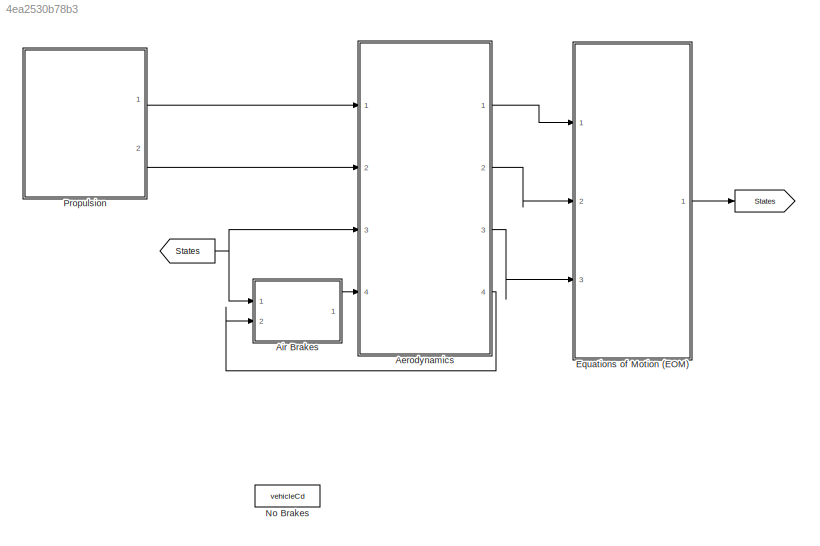
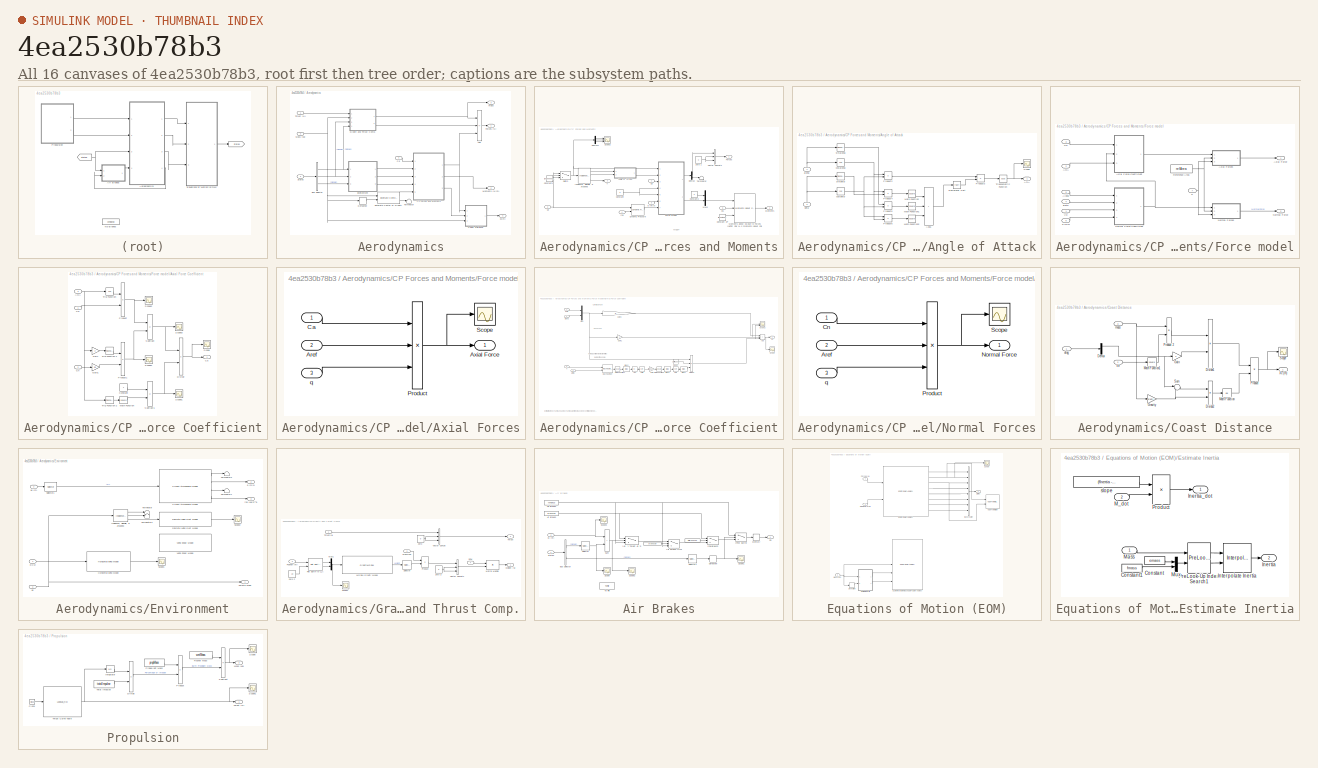
[diagram: thumbnail index - all 16 canvases of the model, root first then tree order]
MODEL slx_4ea2530b78b3
KIND model
CONFIG AbsTol = auto
CONFIG EnableMultiTasking = off
CONFIG FixedStep = auto
CONFIG MaxStep = auto
CONFIG MinStep = auto
CONFIG RelTol = 1e-3
CONFIG SampleTimeConstraint = Unconstrained
CONFIG SolverName = VariableStepAuto
CONFIG StartTime = 0.0
CONFIG StopTime = 30
WORKSPACE source: mxarray member
WORKSPACE bodyLength = 5
WORKSPACE brakesCd = 1
WORKSPACE brakesOn = 1
WORKSPACE dryCG = 3.9
WORKSPACE dryMass = 23
WORKSPACE finArea = 0.2
WORKSPACE finChordAngle = 0.5236
WORKSPACE finSpan = 0.4
WORKSPACE fullBrakesOn = 0
WORKSPACE gravity = 9.8067
WORKSPACE noseLength = 0.5
WORKSPACE propMass = 7.183
WORKSPACE refArea = 0.0182
WORKSPACE rocketCP = 1
WORKSPACE rocketDiam = 0.197
WORKSPACE rocketDiameter = 0.0762
WORKSPACE targetAlt = 3048
WORKSPACE thrust = [0 2638.366 2528.97 3063.078 2426.009 2548.275 2599.755 2554.71 2644.801 2638.366 2561.145 2606.19 ... (27 elements, 27x1)]
WORKSPACE time = [0 0.045 0.067 0.084 0.124 0.186 0.231 0.298 0.371 0.534 0.979 1.142 ... (27 elements, 27x1)]
WORKSPACE totalImpulse = 10831
WORKSPACE vehicleCd = 0.8
WORKSPACE wetCG = 4
WORKSPACE wetMass = 30
BLOCK [Goto]  
  GotoTag = States
BLOCK [From]   
  GotoTag = States
BLOCK [SubSystem] Aerodynamics
  Ports = [4, 4]
  RequestExecContextInheritance = off
BLOCK [Sum] Aerodynamics/Add
  IconShape = rectangular
  Inputs = -+-
  Ports = [3, 1]
BLOCK [BusSelector] Aerodynamics/Bus Selector
  OutputSignals = signal4,signal2,signal5
  Ports = [1, 3]
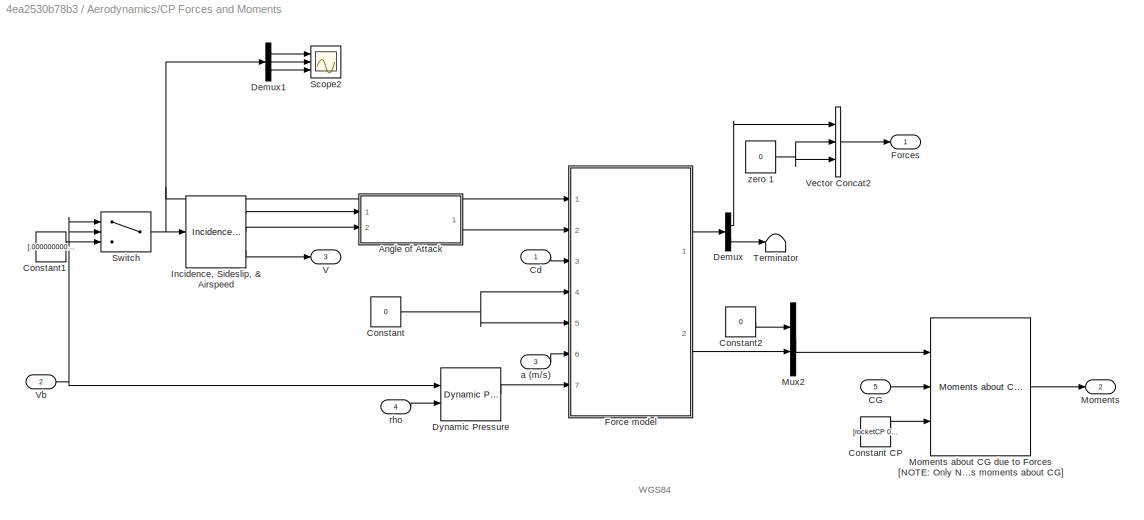
BLOCK [SubSystem] Aerodynamics/CP Forces and Moments
  Ports = [5, 3]
  RequestExecContextInheritance = off
BLOCK [SubSystem] Aerodynamics/CP Forces and Moments/Angle of Attack
  Ports = [2, 1]
  RequestExecContextInheritance = off
BLOCK [Outport] Aerodynamics/CP Forces and Moments/Angle of Attack/AOA
BLOCK [Sum] Aerodynamics/CP Forces and Moments/Angle of Attack/Add1
  IconShape = rectangular
  Inputs = +++
  Ports = [3, 1]
BLOCK [Math] Aerodynamics/CP Forces and Moments/Angle of Attack/Math Function
  Operator = square
  Ports = [1, 1]
  SignedPower = on
BLOCK [Math] Aerodynamics/CP Forces and Moments/Angle of Attack/Math Function1
  Operator = square
  Ports = [1, 1]
  SignedPower = on
BLOCK [Math] Aerodynamics/CP Forces and Moments/Angle of Attack/Math Function2
  Operator = square
  Ports = [1, 1]
  SignedPower = on
BLOCK [Product] Aerodynamics/CP Forces and Moments/Angle of Attack/Product2
  Ports = [2, 1]
BLOCK [Product] Aerodynamics/CP Forces and Moments/Angle of Attack/Product3
  Ports = [2, 1]
BLOCK [Product] Aerodynamics/CP Forces and Moments/Angle of Attack/Product4
  Ports = [2, 1]
BLOCK [Product] Aerodynamics/CP Forces and Moments/Angle of Attack/Product5
  Ports = [2, 1]
BLOCK [Product] Aerodynamics/CP Forces and Moments/Angle of Attack/Product6
  Ports = [2, 1]
BLOCK [Sqrt] Aerodynamics/CP Forces and Moments/Angle of Attack/Reciprocal Sqrt
  Operator = rSqrt
BLOCK [Scope] Aerodynamics/CP Forces and Moments/Angle of Attack/Scope
  Floating = off
  NumInputPorts = 1
  Ports = [1]
  ScopeSpecificationString = Simulink.scopes.TimeScopeBlockCfg('CurrentConfiguration', extmgr.ConfigurationSet(extmgr.Configuration('Core','General UI',true),extmgr.Configuration('Core','Source UI',true),extmgr.Configuration('Sources','WiredSimulink',true,'DataLoggingVariableName','ScopeData23','DataLoggingLimitDataPoints',true,'DataLoggingSaveFormat','Array','DataLoggingDecimation','1','DataLoggingDecimateData',true),extmgr....<+1719ch>
BLOCK [Trigonometry] Aerodynamics/CP Forces and Moments/Angle of Attack/Trigonometric Function
  Operator = acos
  Ports = [1, 1]
BLOCK [Inport] Aerodynamics/CP Forces and Moments/Angle of Attack/alpha
  NameLocation = right
BLOCK [Inport] Aerodynamics/CP Forces and Moments/Angle of Attack/beta
  NameLocation = right
  Port = 2
BLOCK [Trigonometry] Aerodynamics/CP Forces and Moments/Angle of Attack/cos(alpha)
  Operator = cos
  Ports = [1, 1]
BLOCK [Trigonometry] Aerodynamics/CP Forces and Moments/Angle of Attack/cos(beta)
  Operator = cos
  Ports = [1, 1]
BLOCK [Trigonometry] Aerodynamics/CP Forces and Moments/Angle of Attack/sin(alpha)
  Ports = [1, 1]
BLOCK [Trigonometry] Aerodynamics/CP Forces and Moments/Angle of Attack/sin(beta)
  Ports = [1, 1]
BLOCK [Inport] Aerodynamics/CP Forces and Moments/CG
  Port = 5
BLOCK [Inport] Aerodynamics/CP Forces and Moments/Cd
BLOCK [Constant] Aerodynamics/CP Forces and Moments/Constant
  Value = 0
BLOCK [Constant] Aerodynamics/CP Forces and Moments/Constant CP
  Value = [rocketCP 0 0]
BLOCK [Constant] Aerodynamics/CP Forces and Moments/Constant1
  Value = [.00000000001;0;0]
  VectorParams1D = off
BLOCK [Constant] Aerodynamics/CP Forces and Moments/Constant2
  Value = 0
BLOCK [Demux] Aerodynamics/CP Forces and Moments/Demux
  Outputs = 2
  Ports = [1, 2]
BLOCK [Demux] Aerodynamics/CP Forces and Moments/Demux1
  Outputs = 3
  Ports = [1, 3]
BLOCK [Reference] Aerodynamics/CP Forces and Moments/Dynamic Pressure  REF=aerolibasang/Dynamic Pressure
  Ports = [2, 1]
  SourceBlock = aerolibasang/Dynamic Pressure
  SourceProductBaseCode = AE
  SourceType = Dynamic Pressure
BLOCK [SubSystem] Aerodynamics/CP Forces and Moments/Force model
  Ports = [7, 2]
  RequestExecContextInheritance = off
BLOCK [Inport] Aerodynamics/CP Forces and Moments/Force model/AOA
  Port = 2
BLOCK [Inport] Aerodynamics/CP Forces and Moments/Force model/Alpha
  Port = 5
BLOCK [Outport] Aerodynamics/CP Forces and Moments/Force model/Axial Force
BLOCK [SubSystem] Aerodynamics/CP Forces and Moments/Force model/Axial Force Coefficient
  Ports = [3, 1]
  RequestExecContextInheritance = off
BLOCK [Inport] Aerodynamics/CP Forces and Moments/Force model/Axial Force Coefficient/AOA
  Port = 3
BLOCK [Outport] Aerodynamics/CP Forces and Moments/Force model/Axial Force Coefficient/Ca
BLOCK [Inport] Aerodynamics/CP Forces and Moments/Force model/Axial Force Coefficient/Cd
BLOCK [Inport] Aerodynamics/CP Forces and Moments/Force model/Axial Force Coefficient/Cn
  Port = 2
BLOCK [Constant] Aerodynamics/CP Forces and Moments/Force model/Axial Force Coefficient/Constant
BLOCK [Product] Aerodynamics/CP Forces and Moments/Force model/Axial Force Coefficient/Divide
  Inputs = */
  Ports = [2, 1]
BLOCK [Gain] Aerodynamics/CP Forces and Moments/Force model/Axial Force Coefficient/Gain
  Gain = 2
BLOCK [Gain] Aerodynamics/CP Forces and Moments/Force model/Axial Force Coefficient/Gain1
  Gain = 0.5
BLOCK [Math] Aerodynamics/CP Forces and Moments/Force model/Axial Force Coefficient/Math Function
  Operator = square
  Ports = [1, 1]
  SignedPower = on
BLOCK [Product] Aerodynamics/CP Forces and Moments/Force model/Axial Force Coefficient/Product
  Ports = [2, 1]
BLOCK [Product] Aerodynamics/CP Forces and Moments/Force model/Axial Force Coefficient/Product1
  Ports = [2, 1]
BLOCK [Scope] Aerodynamics/CP Forces and Moments/Force model/Axial Force Coefficient/Scope
  Floating = off
  NumInputPorts = 1
  Ports = [1]
  ScopeSpecificationString = Simulink.scopes.TimeScopeBlockCfg('CurrentConfiguration', extmgr.ConfigurationSet(extmgr.Configuration('Core','General UI',true),extmgr.Configuration('Core','Source UI',true),extmgr.Configuration('Sources','WiredSimulink',true,'DataLoggingVariableName','ScopeData5','DataLoggingLimitDataPoints',true,'DataLoggingSaveFormat','Array','DataLoggingDecimation','1','DataLoggingDecimateData',true),extmgr.C...<+1772ch>
BLOCK [Scope] Aerodynamics/CP Forces and Moments/Force model/Axial Force Coefficient/Scope1
  Floating = off
  NumInputPorts = 1
  Ports = [1]
  ScopeSpecificationString = C++SS(StrPVP('Location','[188, 365, 512, 604]'),StrPVP('Open','off'),MxPVP('AxesTitles',54,'struct(''axes1'',''%<SignalLabel>'')'),MxPVP('ScopeGraphics',57,'struct(''FigureColor'',''[0.5 0.5 0.5]'',''AxesColor'',''[0 0 0]'',''AxesTickColor'',''[1 1 1]'',''LineColors'',''[1 1 0;1 0 1;0 1 1;1 0 0;0 1 0;0 0 1]'',''LineStyles'',''-|-|-|-|-|-'',''LineWidths'',''[0.5 0.5 0.5 0.5 0.5 0.5]'',''MarkerStyle...<+197ch>  <repeated x3 — deduplicated; at blocks: Scope1, Scope3, Scope4>
BLOCK [Scope] Aerodynamics/CP Forces and Moments/Force model/Axial Force Coefficient/Scope2
  Floating = off
  NumInputPorts = 1
  Ports = [1]
  ScopeSpecificationString = Simulink.scopes.TimeScopeBlockCfg('CurrentConfiguration', extmgr.ConfigurationSet(extmgr.Configuration('Core','General UI',true),extmgr.Configuration('Core','Source UI',true),extmgr.Configuration('Sources','WiredSimulink',true,'DataLoggingVariableName','ScopeData15','DataLoggingLimitDataPoints',true,'DataLoggingSaveFormat','Array','DataLoggingDecimation','1','DataLoggingDecimateData',true),extmgr....<+1669ch>
BLOCK [Scope] Aerodynamics/CP Forces and Moments/Force model/Axial Force Coefficient/Scope3
  Floating = off
  NumInputPorts = 1
  Ports = [1]
BLOCK [Scope] Aerodynamics/CP Forces and Moments/Force model/Axial Force Coefficient/Scope4
  Floating = off
  NumInputPorts = 1
  Ports = [1]
BLOCK [Sum] Aerodynamics/CP Forces and Moments/Force model/Axial Force Coefficient/Subtract
  IconShape = rectangular
  Inputs = +-
  Ports = [2, 1]
BLOCK [Sum] Aerodynamics/CP Forces and Moments/Force model/Axial Force Coefficient/Subtract1
  IconShape = rectangular
  Inputs = +-
  Ports = [2, 1]
BLOCK [Trigonometry] Aerodynamics/CP Forces and Moments/Force model/Axial Force Coefficient/Trig Function
  Operator = cos
  Ports = [1, 1]
BLOCK [Trigonometry] Aerodynamics/CP Forces and Moments/Force model/Axial Force Coefficient/Trig Function 1
  Ports = [1, 1]
BLOCK [Trigonometry] Aerodynamics/CP Forces and Moments/Force model/Axial Force Coefficient/Trig Function 2
  Ports = [1, 1]
BLOCK [SubSystem] Aerodynamics/CP Forces and Moments/Force model/Axial Forces
  Ports = [3, 1]
  RequestExecContextInheritance = off
BLOCK [Inport] Aerodynamics/CP Forces and Moments/Force model/Axial Forces/Aref
  Port = 2
BLOCK [Outport] Aerodynamics/CP Forces and Moments/Force model/Axial Forces/Axial Force
BLOCK [Inport] Aerodynamics/CP Forces and Moments/Force model/Axial Forces/Ca
BLOCK [Product] Aerodynamics/CP Forces and Moments/Force model/Axial Forces/Product
  Inputs = 3
  Ports = [3, 1]
BLOCK [Scope] Aerodynamics/CP Forces and Moments/Force model/Axial Forces/Scope
  Floating = off
  NumInputPorts = 1
  Ports = [1]
  ScopeSpecificationString = Simulink.scopes.TimeScopeBlockCfg('CurrentConfiguration', extmgr.ConfigurationSet(extmgr.Configuration('Core','General UI',true),extmgr.Configuration('Core','Source UI',true),extmgr.Configuration('Sources','WiredSimulink',true,'DataLoggingVariableName','ScopeData6','DataLoggingLimitDataPoints',true,'DataLoggingSaveFormat','Array','DataLoggingDecimation','1','DataLoggingDecimateData',true),extmgr.C...<+1718ch>
BLOCK [Inport] Aerodynamics/CP Forces and Moments/Force model/Axial Forces/q 
  Port = 3
BLOCK [Inport] Aerodynamics/CP Forces and Moments/Force model/Beta
  Port = 4
BLOCK [Inport] Aerodynamics/CP Forces and Moments/Force model/Cd
  Port = 3
BLOCK [Outport] Aerodynamics/CP Forces and Moments/Force model/Normal Force
  Port = 2
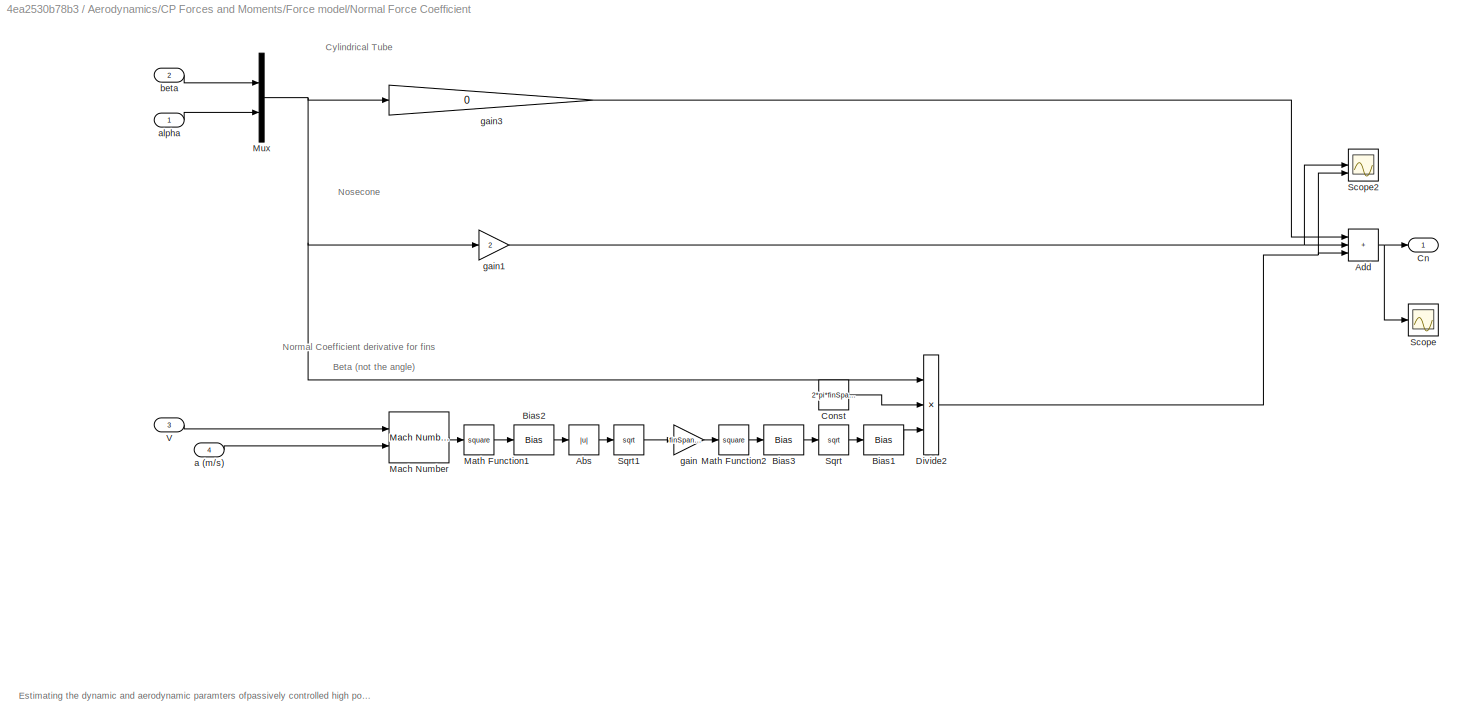
BLOCK [SubSystem] Aerodynamics/CP Forces and Moments/Force model/Normal Force Coefficient
  Ports = [4, 1]
  RequestExecContextInheritance = off
BLOCK [Abs] Aerodynamics/CP Forces and Moments/Force model/Normal Force Coefficient/Abs
  SaturateOnIntegerOverflow = off
BLOCK [Sum] Aerodynamics/CP Forces and Moments/Force model/Normal Force Coefficient/Add
  IconShape = rectangular
  Inputs = +++
  Ports = [3, 1]
BLOCK [Bias] Aerodynamics/CP Forces and Moments/Force model/Normal Force Coefficient/Bias1
  Bias = 1
  SaturateOnIntegerOverflow = off
BLOCK [Bias] Aerodynamics/CP Forces and Moments/Force model/Normal Force Coefficient/Bias2
  Bias = -1
  SaturateOnIntegerOverflow = off
BLOCK [Bias] Aerodynamics/CP Forces and Moments/Force model/Normal Force Coefficient/Bias3
  Bias = 1
  SaturateOnIntegerOverflow = off
BLOCK [Outport] Aerodynamics/CP Forces and Moments/Force model/Normal Force Coefficient/Cn
BLOCK [Constant] Aerodynamics/CP Forces and Moments/Force model/Normal Force Coefficient/Const
  Value = 2*pi*finSpan^2
BLOCK [Product] Aerodynamics/CP Forces and Moments/Force model/Normal Force Coefficient/Divide2
  Inputs = **/
  Ports = [3, 1]
BLOCK [Reference] Aerodynamics/CP Forces and Moments/Force model/Normal Force Coefficient/Mach Number  REF=aerolibasang/Mach Number
  Ports = [2, 1]
  SourceBlock = aerolibasang/Mach Number
  SourceProductBaseCode = AE
  SourceType = Mach Number
BLOCK [Math] Aerodynamics/CP Forces and Moments/Force model/Normal Force Coefficient/Math Function1
  Operator = square
  Ports = [1, 1]
  SignedPower = on
BLOCK [Math] Aerodynamics/CP Forces and Moments/Force model/Normal Force Coefficient/Math Function2
  Operator = square
  Ports = [1, 1]
  SignedPower = on
BLOCK [Mux] Aerodynamics/CP Forces and Moments/Force model/Normal Force Coefficient/Mux
  DisplayOption = bar
  Inputs = 2
  Ports = [2, 1]
BLOCK [Scope] Aerodynamics/CP Forces and Moments/Force model/Normal Force Coefficient/Scope
  Floating = off
  NumInputPorts = 1
  Ports = [1]
  ScopeSpecificationString = Simulink.scopes.TimeScopeBlockCfg('CurrentConfiguration', extmgr.ConfigurationSet(extmgr.Configuration('Core','General UI',true),extmgr.Configuration('Core','Source UI',true),extmgr.Configuration('Sources','WiredSimulink',true,'DataLoggingVariableName','ScopeData1','DataLoggingLimitDataPoints',true,'DataLoggingSaveFormat','Array','DataLoggingDecimation','1','DataLoggingDecimateData',true),extmgr.C...<+1701ch>
BLOCK [Scope] Aerodynamics/CP Forces and Moments/Force model/Normal Force Coefficient/Scope2
  Floating = off
  NumInputPorts = 3
  Ports = [3]
  ScopeSpecificationString = Simulink.scopes.TimeScopeBlockCfg('CurrentConfiguration', extmgr.ConfigurationSet(extmgr.Configuration('Core','General UI',true),extmgr.Configuration('Core','Source UI',true),extmgr.Configuration('Sources','WiredSimulink',true,'DataLoggingVariableName','ScopeData3','DataLoggingLimitDataPoints',true,'DataLoggingSaveFormat','Array','DataLoggingDecimation','1','DataLoggingDecimateData',true),extmgr.C...<+3082ch>
BLOCK [Sqrt] Aerodynamics/CP Forces and Moments/Force model/Normal Force Coefficient/Sqrt
BLOCK [Sqrt] Aerodynamics/CP Forces and Moments/Force model/Normal Force Coefficient/Sqrt1
BLOCK [Inport] Aerodynamics/CP Forces and Moments/Force model/Normal Force Coefficient/V
  Port = 3
BLOCK [Inport] Aerodynamics/CP Forces and Moments/Force model/Normal Force Coefficient/a (m//s)
  Port = 4
BLOCK [Inport] Aerodynamics/CP Forces and Moments/Force model/Normal Force Coefficient/alpha
BLOCK [Inport] Aerodynamics/CP Forces and Moments/Force model/Normal Force Coefficient/beta
  Port = 2
BLOCK [Gain] Aerodynamics/CP Forces and Moments/Force model/Normal Force Coefficient/gain
  Gain = finSpan^2/(finArea*cos(finChordAngle))
BLOCK [Gain] Aerodynamics/CP Forces and Moments/Force model/Normal Force Coefficient/gain1
  Gain = 2
BLOCK [Gain] Aerodynamics/CP Forces and Moments/Force model/Normal Force Coefficient/gain3
  Gain = 0
BLOCK [SubSystem] Aerodynamics/CP Forces and Moments/Force model/Normal Forces
  Ports = [3, 1]
  RequestExecContextInheritance = off
BLOCK [Inport] Aerodynamics/CP Forces and Moments/Force model/Normal Forces/Aref
  Port = 2
BLOCK [Inport] Aerodynamics/CP Forces and Moments/Force model/Normal Forces/Cn
BLOCK [Outport] Aerodynamics/CP Forces and Moments/Force model/Normal Forces/Normal Force
BLOCK [Product] Aerodynamics/CP Forces and Moments/Force model/Normal Forces/Product
  Inputs = 3
  Ports = [3, 1]
BLOCK [Scope] Aerodynamics/CP Forces and Moments/Force model/Normal Forces/Scope
  Floating = off
  NumInputPorts = 1
  Ports = [1]
  ScopeSpecificationString = Simulink.scopes.TimeScopeBlockCfg('CurrentConfiguration', extmgr.ConfigurationSet(extmgr.Configuration('Core','General UI',true),extmgr.Configuration('Core','Source UI',true),extmgr.Configuration('Sources','WiredSimulink',true,'DataLoggingVariableName','ScopeData6','DataLoggingLimitDataPoints',true,'DataLoggingSaveFormat','Array','DataLoggingDecimation','1','DataLoggingDecimateData',true),extmgr.C...<+1718ch>
BLOCK [Inport] Aerodynamics/CP Forces and Moments/Force model/Normal Forces/q 
  Port = 3
BLOCK [Constant] Aerodynamics/CP Forces and Moments/Force model/Reference Area
  Value = refArea
BLOCK [Inport] Aerodynamics/CP Forces and Moments/Force model/Vb
BLOCK [Inport] Aerodynamics/CP Forces and Moments/Force model/a (m//s)
  Port = 6
BLOCK [Inport] Aerodynamics/CP Forces and Moments/Force model/q 
  Port = 7
BLOCK [Outport] Aerodynamics/CP Forces and Moments/Forces
BLOCK [Reference] Aerodynamics/CP Forces and Moments/Incidence, Sideslip, & Airspeed  REF=aerolibasang/Incidence, Sideslip,
& Airspeed
  Ports = [1, 3]
  SourceBlock = aerolibasang/Incidence, Sideslip,\n& Airspeed
  SourceProductBaseCode = AE
  SourceType = Incidence,Sideslip,&Airspeed
BLOCK [Outport] Aerodynamics/CP Forces and Moments/Moments
  Port = 2
BLOCK [Reference] Aerodynamics/CP Forces and Moments/Moments about CG due to Forces [NOTE: Only Normal Force applys moments about CG]  REF=aerolibbdyn/Moments about CG 
due to Forces
  Ports = [3, 1]
  SourceBlock = aerolibbdyn/Moments about CG \ndue to Forces
  SourceProductBaseCode = AE
  SourceType = Moments About CG Due To Forces
BLOCK [Mux] Aerodynamics/CP Forces and Moments/Mux2
  DisplayOption = bar
  Inputs = 2
  Ports = [2, 1]
BLOCK [Scope] Aerodynamics/CP Forces and Moments/Scope2
  Floating = off
  NumInputPorts = 3
  Ports = [3]
  ScopeSpecificationString = Simulink.scopes.TimeScopeBlockCfg('CurrentConfiguration', extmgr.ConfigurationSet(extmgr.Configuration('Core','General UI',true),extmgr.Configuration('Core','Source UI',true),extmgr.Configuration('Sources','WiredSimulink',true,'DataLoggingVariableName','ScopeData1','DataLoggingLimitDataPoints',true,'DataLoggingSaveFormat','Array','DataLoggingDecimation','1','DataLoggingDecimateData',true),extmgr.C...<+3051ch>
BLOCK [Switch] Aerodynamics/CP Forces and Moments/Switch
  Criteria = u2 ~= 0
  InputSameDT = off
  SaturateOnIntegerOverflow = off
BLOCK [Terminator] Aerodynamics/CP Forces and Moments/Terminator
BLOCK [Outport] Aerodynamics/CP Forces and Moments/V
  Port = 3
BLOCK [Inport] Aerodynamics/CP Forces and Moments/Vb
  Port = 2
BLOCK [Concatenate] Aerodynamics/CP Forces and Moments/Vector Concat2
  NumInputs = 3
  Ports = [3, 1]
BLOCK [Inport] Aerodynamics/CP Forces and Moments/a (m//s)
  Port = 3
BLOCK [Inport] Aerodynamics/CP Forces and Moments/rho
  Port = 4
BLOCK [Constant] Aerodynamics/CP Forces and Moments/zero 1
  Value = 0
BLOCK [Inport] Aerodynamics/Cd
  Port = 4
BLOCK [SubSystem] Aerodynamics/Coast Distance
  Ports = [3, 1]
  RequestExecContextInheritance = off
BLOCK [Demux] Aerodynamics/Coast Distance/Demux
  Outputs = 3
  Ports = [1, 3]
BLOCK [Product] Aerodynamics/Coast Distance/Divide1
  Inputs = */
  Ports = [2, 1]
BLOCK [Product] Aerodynamics/Coast Distance/Divide2
  Inputs = */
  Ports = [2, 1]
BLOCK [Gain] Aerodynamics/Coast Distance/Gain
  Gain = 2
BLOCK [Gain] Aerodynamics/Coast Distance/Gravity
  Gain = gravity
BLOCK [Math] Aerodynamics/Coast Distance/Math Function
  Operator = log
  Ports = [1, 1]
  SignedPower = on
BLOCK [Math] Aerodynamics/Coast Distance/Math Function1
  Operator = square
  Ports = [1, 1]
  SignedPower = on
BLOCK [Product] Aerodynamics/Coast Distance/Product
  Ports = [2, 1]
BLOCK [Product] Aerodynamics/Coast Distance/Product 2
  Inputs = **
  Ports = [2, 1]
BLOCK [Scope] Aerodynamics/Coast Distance/Scope
  Floating = off
  NumInputPorts = 1
  Ports = [1]
  ScopeSpecificationString = Simulink.scopes.TimeScopeBlockCfg('CurrentConfiguration', extmgr.ConfigurationSet(extmgr.Configuration('Core','General UI',true),extmgr.Configuration('Core','Source UI',true),extmgr.Configuration('Sources','WiredSimulink',true,'DataLoggingVariableName','ScopeData50','DataLoggingLimitDataPoints',true,'DataLoggingSaveFormat','Array','DataLoggingDecimation','1','DataLoggingDecimateData',true),extmgr....<+1691ch>
BLOCK [Sum] Aerodynamics/Coast Distance/Sum
  Inputs = |++
  Ports = [2, 1]
BLOCK [Inport] Aerodynamics/Coast Distance/Ve
  Port = 2
BLOCK [Outport] Aerodynamics/Coast Distance/Xc (m)
BLOCK [Inport] Aerodynamics/Coast Distance/drag
BLOCK [Inport] Aerodynamics/Coast Distance/mass
  Port = 3
BLOCK [Derivative] Aerodynamics/Derivative
BLOCK [SubSystem] Aerodynamics/Environment
  Ports = [3, 3]
  RequestExecContextInheritance = off
BLOCK [Reference] Aerodynamics/Environment/COESA Atmosphere Model  REF=aerolibatmos2/COESA Atmosphere Model
  Ports = [1, 4]
  SourceBlock = aerolibatmos2/COESA Atmosphere Model
  SourceProductBaseCode = AE
  SourceType = Atmosphere Model
BLOCK [Inport] Aerodynamics/Environment/DCM
BLOCK [Reference] Aerodynamics/Environment/Discrete Wind Gust Model  REF=aerolibwind2/Discrete Wind Gust Model
  Commented = on
  Ports = [1, 1]
  SourceBlock = aerolibwind2/Discrete Wind Gust Model
  SourceProductBaseCode = AE
  SourceType = Discrete Wind Gust Model
BLOCK [Reference] Aerodynamics/Environment/Horizontal Wind Model  REF=aerolibwind2/Horizontal Wind Model
  Ports = [1, 1]
  SourceBlock = aerolibwind2/Horizontal Wind Model
  SourceProductBaseCode = AE
  SourceType = Horizontal Wind Model
BLOCK [Reference] Aerodynamics/Environment/Incidence, Sideslip, & Airspeed  REF=aerolibasang/Incidence, Sideslip,
& Airspeed
  Commented = on
  Ports = [1, 3]
  SourceBlock = aerolibasang/Incidence, Sideslip,\n& Airspeed
  SourceProductBaseCode = AE
  SourceType = Incidence,Sideslip,&Airspeed
BLOCK [Scope] Aerodynamics/Environment/Scope1
  Floating = off
  NumInputPorts = 1
  Ports = [1]
  ScopeSpecificationString = Simulink.scopes.TimeScopeBlockCfg('CurrentConfiguration', extmgr.ConfigurationSet(extmgr.Configuration('Core','General UI',true),extmgr.Configuration('Core','Source UI',true),extmgr.Configuration('Sources','WiredSimulink',true,'DataLoggingVariableName','ScopeData2'),extmgr.Configuration('Visuals','Time Domain',true,'SerializedDisplays',{struct('MinYLimReal','-1.21334','MaxYLimReal','0.92007','YLab...<+1434ch>
BLOCK [Scope] Aerodynamics/Environment/Scope2
  Commented = on
  Floating = off
  NumInputPorts = 1
  Ports = [1]
  ScopeSpecificationString = Simulink.scopes.TimeScopeBlockCfg('CurrentConfiguration', extmgr.ConfigurationSet(extmgr.Configuration('Core','General UI',true),extmgr.Configuration('Core','Source UI',true),extmgr.Configuration('Sources','WiredSimulink',true,'DataLoggingVariableName','ScopeData4'),extmgr.Configuration('Visuals','Time Domain',true,'SerializedDisplays',{struct('MinYLimReal','-1.00000','MaxYLimReal','1.00000','YLab...<+1443ch>
BLOCK [Selector] Aerodynamics/Environment/Selector1
  IndexOptions = Index vector (dialog)
  Indices = 1
  InputPortWidth = 3
  OutputSizes = 1
  Ports = [1, 1]
BLOCK [Terminator] Aerodynamics/Environment/Terminator
  Commented = on
BLOCK [Terminator] Aerodynamics/Environment/Terminator1
BLOCK [Terminator] Aerodynamics/Environment/Terminator2
BLOCK [Terminator] Aerodynamics/Environment/Terminator3
  Commented = on
BLOCK [Inport] Aerodynamics/Environment/Vb
  Port = 3
BLOCK [Outport] Aerodynamics/Environment/Vb(with wind)
BLOCK [Reference] Aerodynamics/Environment/Wind Shear Model  REF=aerolibwind2/Wind Shear Model
  Commented = on
  Ports = [2, 1]
  SourceBlock = aerolibwind2/Wind Shear Model
  SourceProductBaseCode = AE
  SourceType = Wind Shear Model
BLOCK [Inport] Aerodynamics/Environment/Xe (m)
  Port = 2
BLOCK [Outport] Aerodynamics/Environment/a (m//s)
  Port = 2
BLOCK [Outport] Aerodynamics/Environment/rho (kg//m^3)
  Port = 3
BLOCK [Reference] Aerodynamics/Estimate Center of Gravity  REF=aerolibbdyn/Estimate
Center of Gravity
  Ports = [2, 2]
  SourceBlock = aerolibbdyn/Estimate\nCenter of Gravity
  SourceProductBaseCode = AE
  SourceType = Estimate Center of Gravity
BLOCK [Outport] Aerodynamics/Forces (N)
BLOCK [SubSystem] Aerodynamics/Gravity and Thrust Comp.
  Ports = [4, 2]
  RequestExecContextInheritance = off
BLOCK [Inport] Aerodynamics/Gravity and Thrust Comp./DCM
  Port = 4
BLOCK [Reference] Aerodynamics/Gravity and Thrust Comp./Flat Earth to LLA  REF=aerolibtransform2/Flat Earth to LLA
  Ports = [2, 2]
  SourceBlock = aerolibtransform2/Flat Earth to LLA
  SourceProductBaseCode = AE
  SourceType = Flat Earth to LLA
BLOCK [Inport] Aerodynamics/Gravity and Thrust Comp./Mass(kg)
  Port = 2
BLOCK [Product] Aerodynamics/Gravity and Thrust Comp./Matrix Multiply
  Multiplication = Matrix(*)
  Ports = [2, 1]
BLOCK [Mux] Aerodynamics/Gravity and Thrust Comp./Mux1
  DisplayOption = bar
  Inputs = 2
  Ports = [2, 1]
BLOCK [Inport] Aerodynamics/Gravity and Thrust Comp./Position (m)
  Port = 3
BLOCK [Product] Aerodynamics/Gravity and Thrust Comp./Product
  Ports = [2, 1]
BLOCK [Scope] Aerodynamics/Gravity and Thrust Comp./Scope1
  Floating = off
  NumInputPorts = 1
  Ports = [1]
  ScopeSpecificationString = Simulink.scopes.TimeScopeBlockCfg('CurrentConfiguration', extmgr.ConfigurationSet(extmgr.Configuration('Core','General UI',true),extmgr.Configuration('Core','Source UI',true),extmgr.Configuration('Sources','WiredSimulink',true,'DataLoggingVariableName','ScopeData2'),extmgr.Configuration('Visuals','Time Domain',true,'SerializedDisplays',{struct('MinYLimReal','-12.5','MaxYLimReal','12.5','YLabelReal...<+1515ch>
BLOCK [Selector] Aerodynamics/Gravity and Thrust Comp./Selector
  IndexOptions = Index vector (dialog)
  Indices = [3]
  InputPortWidth = 3
  OutputSizes = 1
  Ports = [1, 1]
BLOCK [Outport] Aerodynamics/Gravity and Thrust Comp./Thrust
  Port = 2
BLOCK [Inport] Aerodynamics/Gravity and Thrust Comp./Thrust(N)
BLOCK [Concatenate] Aerodynamics/Gravity and Thrust Comp./Vector Concat
  NumInputs = 3
  Ports = [3, 1]
BLOCK [Concatenate] Aerodynamics/Gravity and Thrust Comp./Vector Concat1
  NumInputs = 3
  Ports = [3, 1]
BLOCK [GravityWGS84] Aerodynamics/Gravity and Thrust Comp./WGS84 Gravity Model  
  Ports = [1, 1]
BLOCK [Outport] Aerodynamics/Gravity and Thrust Comp./Weight (N)
BLOCK [Constant] Aerodynamics/Gravity and Thrust Comp./zero 
  Value = 0
BLOCK [Constant] Aerodynamics/Gravity and Thrust Comp./zero 2
  Value = 10
BLOCK [Constant] Aerodynamics/Gravity and Thrust Comp./zero 3
  Value = 0
BLOCK [Inport] Aerodynamics/Mass (kg)
  Port = 2
BLOCK [Outport] Aerodynamics/Moments (N*m)
  Port = 2
BLOCK [Inport] Aerodynamics/States
  Port = 3
BLOCK [Terminator] Aerodynamics/Terminator
BLOCK [Inport] Aerodynamics/Thrust (N)
BLOCK [Outport] Aerodynamics/Xc(m)
  Port = 4
BLOCK [Outport] Aerodynamics/mass
  Port = 3
BLOCK [SubSystem] Air Brakes
  NameLocation = top
  Ports = [2, 1]
  RequestExecContextInheritance = off
BLOCK [Constant] Air Brakes/ 
  Value = fullBrakesOn
BLOCK [Constant] Air Brakes/  
  Value = brakesOn
BLOCK [Constant] Air Brakes/Air Brakes
  Value = brakesCd
BLOCK [BusSelector] Air Brakes/Bus Selector
  OutputSignals = signal2,signal1
  Ports = [1, 2]
BLOCK [Outport] Air Brakes/Cd 
BLOCK [Derivative] Air Brakes/Derivative
BLOCK [Memory] Air Brakes/Memory
BLOCK [Constant] Air Brakes/No Brakes
  Value = vehicleCd
BLOCK [Scope] Air Brakes/Scope
  Floating = off
  NumInputPorts = 1
  Ports = [1]
  ScopeSpecificationString = C++SS(StrPVP('Location','[10, 69, 1924, 1087]'),StrPVP('Open','off'),MxPVP('AxesTitles',54,'struct(''axes1'',''%<SignalLabel>'')'),MxPVP('ScopeGraphics',57,'struct(''FigureColor'',''[1 1 1]'',''AxesColor'',''[1 1 1]'',''AxesTickColor'',''[0 0 0]'',''LineColors'',''[0 0 1;1 0 1;0 1 1;1 0 0;0 1 0;0 0 1]'',''LineStyles'',''-|-|-|-|-|-'',''LineWidths'',''[0.5 0.5 0.5 0.5 0.5 0.5]'',''MarkerStyles'',''...<+301ch>
BLOCK [Scope] Air Brakes/Scope1
  Floating = off
  NumInputPorts = 1
  Ports = [1]
  ScopeSpecificationString = Simulink.scopes.TimeScopeBlockCfg('CurrentConfiguration', extmgr.ConfigurationSet(extmgr.Configuration('Core','General UI',true,'FigureColor',[1 1 1]),extmgr.Configuration('Core','Source UI',true),extmgr.Configuration('Sources','WiredSimulink',true,'DataLoggingVariableName','ScopeData19','DataLoggingLimitDataPoints',true,'DataLoggingSaveFormat','Array','DataLoggingDecimation','1','DataLoggingDecim...<+2805ch>
BLOCK [Scope] Air Brakes/Scope2
  Floating = off
  NumInputPorts = 1
  Ports = [1]
  ScopeSpecificationString = Simulink.scopes.TimeScopeBlockCfg('CurrentConfiguration', extmgr.ConfigurationSet(extmgr.Configuration('Core','General UI',true,'FigureColor',[1 1 1]),extmgr.Configuration('Core','Source UI',true),extmgr.Configuration('Sources','WiredSimulink',true,'DataLoggingVariableName','ScopeData2','DataLoggingLimitDataPoints',true,'DataLoggingSaveFormat','Array','DataLoggingDecimation','1','DataLoggingDecima...<+2775ch>
BLOCK [Scope] Air Brakes/Scope3
  Floating = off
  NumInputPorts = 1
  Ports = [1]
  ScopeSpecificationString = Simulink.scopes.TimeScopeBlockCfg('CurrentConfiguration', extmgr.ConfigurationSet(extmgr.Configuration('Core','General UI',true),extmgr.Configuration('Core','Source UI',true),extmgr.Configuration('Sources','WiredSimulink',true,'DataLoggingVariableName','ScopeData1'),extmgr.Configuration('Visuals','Time Domain',true,'SerializedDisplays',{struct('MinYLimReal','-459.73966','MaxYLimReal','4137.65691',...<+1454ch>
BLOCK [Selector] Air Brakes/Selector 
  IndexOptions = Index vector (dialog)
  Indices = 1
  InputPortWidth = 3
  OutputSizes = 1
  Ports = [1, 1]
BLOCK [Selector] Air Brakes/Selector1
  IndexOptions = Index vector (dialog)
  Indices = 1
  InputPortWidth = 3
  OutputSizes = 1
  Ports = [1, 1]
BLOCK [Inport] Air Brakes/States
BLOCK [Sum] Air Brakes/Sum
  IconShape = rectangular
  Ports = [2, 1]
BLOCK [ToFile] Air Brakes/To File
  Commented = on
  Filename = altitude.mat
  Ports = [1]
  SaveFormat = Timeseries
BLOCK [Inport] Air Brakes/Xc (m)
  Port = 2
BLOCK [Switch] Air Brakes/[Air Brakes On?]
  Criteria = u2 > Threshold
  Description = [Air Brakes On?]
  InputSameDT = off
  SaturateOnIntegerOverflow = off
BLOCK [Switch] Air Brakes/[Alt. > Target Alt.?]
  Criteria = u2 > Threshold
  InputSameDT = off
  SaturateOnIntegerOverflow = off
  Threshold = targetAlt
BLOCK [Switch] Air Brakes/[Full Brake?]
  Criteria = u2 > Threshold
  InputSameDT = off
  SaturateOnIntegerOverflow = off
BLOCK [Switch] Air Brakes/[Post Burn?]
  Criteria = u2 > Threshold
  InputSameDT = off
  SaturateOnIntegerOverflow = off
BLOCK [SubSystem] Equations of Motion (EOM)
  Ports = [3, 1]
  RequestExecContextInheritance = off
BLOCK [Reference] Equations of Motion (EOM)/6DOF (Euler Angles)  REF=shared6dof/6DOF (Euler Angles)
  Ports = [2, 8]
  SourceBlock = shared6dof/6DOF (Euler Angles)
  SourceProductBaseCode = AE,PW,DR,MT,UV,VE
  SourceType = 6DOF EoM (Body Axis)
BLOCK [Reference] Equations of Motion (EOM)/6DoF Animation  REF=aerolibanim/6DoF Animation
  Ports = [2]
  SourceBlock = aerolibanim/6DoF Animation
  SourceProductBaseCode = AE
  SourceType = 6DoF_Animation
BLOCK [BusCreator] Equations of Motion (EOM)/Bus Creator
  DisplayOption = bar
  InheritFromInputs = on
  Inputs = 8
  Ports = [8, 1]
BLOCK [Reference] Equations of Motion (EOM)/Custom Variable Mass 6DOF (Euler Angles)  REF=shared6dof/6DOF (Euler Angles)
  Commented = on
  Ports = [5, 8]
  SourceBlock = shared6dof/6DOF (Euler Angles)
  SourceProductBaseCode = AE,PW,DR,MT,UV,VE
  SourceType = 6DOF EoM (Body Axis)
BLOCK [Derivative] Equations of Motion (EOM)/Derivative
  Commented = on
BLOCK [SubSystem] Equations of Motion (EOM)/Estimate Inertia
  Commented = on
  Ports = [2, 2]
  RequestExecContextInheritance = off
BLOCK [Constant] Equations of Motion (EOM)/Estimate Inertia/Constant
  Value = emass
BLOCK [Constant] Equations of Motion (EOM)/Estimate Inertia/Constant1
  Value = fmass
BLOCK [Outport] Equations of Motion (EOM)/Estimate Inertia/Inertia
  Port = 2
BLOCK [Outport] Equations of Motion (EOM)/Estimate Inertia/Inertia_dot
BLOCK [Reference] Equations of Motion (EOM)/Estimate Inertia/Interpolate Inertia  REF=sharedschedule/Interpolate
Matrix(x) 
  Ports = [2, 1]
  SourceBlock = sharedschedule/Interpolate\nMatrix(x)
  SourceProductBaseCode = AE,PW,DR,MT,UV,VE
  SourceType = ScheduleMatrix-1D
BLOCK [Inport] Equations of Motion (EOM)/Estimate Inertia/M_dot
  Port = 2
BLOCK [Inport] Equations of Motion (EOM)/Estimate Inertia/Mass
BLOCK [Mux] Equations of Motion (EOM)/Estimate Inertia/Mux
  DisplayOption = bar
  Inputs = 2
  Ports = [2, 1]
BLOCK [PreLookup] Equations of Motion (EOM)/Estimate Inertia/PreLook-Up Index Search1
  BeginIndexSearchUsingPreviousIndexResult = on
  BreakpointsData = [emass fmass]
  BreakpointsDataSource = Input port
  FractionDataTypeStr = double
  IndexDataTypeStr = int32
  InputPortMap = u0,p1
  Ports = [2, 2]
BLOCK [Product] Equations of Motion (EOM)/Estimate Inertia/Product
  OutDataTypeStr = Inherit: Same as first input
  Ports = [2, 1]
  SaturateOnIntegerOverflow = on
BLOCK [Constant] Equations of Motion (EOM)/Estimate Inertia/slope
  Value = (fInertia - eInertia)/(fmass - emass)
BLOCK [Inport] Equations of Motion (EOM)/Forces (N)
BLOCK [Inport] Equations of Motion (EOM)/Mass (kg)
  Port = 3
BLOCK [Inport] Equations of Motion (EOM)/Moments (N*m)
  Port = 2
BLOCK [Scope] Equations of Motion (EOM)/Scope
  Floating = off
  NumInputPorts = 1
  Ports = [1]
  ScopeSpecificationString = Simulink.scopes.TimeScopeBlockCfg('CurrentConfiguration', extmgr.ConfigurationSet(extmgr.Configuration('Core','General UI',true),extmgr.Configuration('Core','Source UI',true),extmgr.Configuration('Sources','WiredSimulink',true,'DataLoggingVariableName','ScopeData1'),extmgr.Configuration('Visuals','Time Domain',true,'SerializedDisplays',{struct('MinYLimReal','-12.98725','MaxYLimReal','30.81561','YL...<+1488ch>
BLOCK [Outport] Equations of Motion (EOM)/States
BLOCK [Constant] No Brakes
  Value = vehicleCd
BLOCK [SubSystem] Propulsion
  Ports = [0, 2]
  RequestExecContextInheritance = off
BLOCK [Clock] Propulsion/Clock
  Decimation = 1
BLOCK [Product] Propulsion/Divide
  Inputs = */
  Ports = [2, 1]
BLOCK [Integrator] Propulsion/Integrator
  Ports = [1, 1]
BLOCK [Outport] Propulsion/Mass (kg)
  Port = 2
BLOCK [Product] Propulsion/Product
  Ports = [2, 1]
BLOCK [Constant] Propulsion/Propellant Mass
  Value = propMass
BLOCK [Constant] Propulsion/Rocket Mass
  Value = wetMass
BLOCK [Scope] Propulsion/Scope
  Floating = off
  NumInputPorts = 1
  Ports = [1]
  ScopeSpecificationString = Simulink.scopes.TimeScopeBlockCfg('CurrentConfiguration', extmgr.ConfigurationSet(extmgr.Configuration('Core','General UI',true),extmgr.Configuration('Core','Source UI',true),extmgr.Configuration('Sources','WiredSimulink',true),extmgr.Configuration('Visuals','Time Domain',true,'SerializedDisplays',{struct('MinYLimReal','27.69322','MaxYLimReal','30.25631','YLabelReal','','MinYLimMag','27.69322','Ma...<+1368ch>
BLOCK [Scope] Propulsion/Scope1
  Floating = off
  NumInputPorts = 1
  Ports = [1]
  ScopeSpecificationString = Simulink.scopes.TimeScopeBlockCfg('CurrentConfiguration', extmgr.ConfigurationSet(extmgr.Configuration('Core','General UI',true),extmgr.Configuration('Core','Source UI',true),extmgr.Configuration('Sources','WiredSimulink',true,'DataLoggingVariableName','ScopeData1'),extmgr.Configuration('Visuals','Time Domain',true,'SerializedDisplays',{struct('MinYLimReal','2461.61731','MaxYLimReal','2792.95779',...<+1448ch>
BLOCK [Sum] Propulsion/Subtract
  IconShape = rectangular
  Inputs = +-
  Ports = [2, 1]
BLOCK [Outport] Propulsion/Thrust (N)
BLOCK [Lookup_n-D] Propulsion/Thrust Curve Table
  BreakpointsForDimension1 = time
  ExtrapMethod = Clip
  InputPortMap = u0
  InternalRulePriority = Speed
  NumberOfTableDimensions = 1
  Ports = [1, 1]
  RndMeth = Simplest
  Table = thrust
BLOCK [Constant] Propulsion/Total Impulse
  Value = totalImpulse
ANNOTATION Aerodynamics/CP Forces and Moments: WGS84
ANNOTATION Aerodynamics/CP Forces and Moments/Force model/Normal Force Coefficient: Beta (not the angle)
ANNOTATION Aerodynamics/CP Forces and Moments/Force model/Normal Force Coefficient: Cylindrical Tube
ANNOTATION Aerodynamics/CP Forces and Moments/Force model/Normal Force Coefficient: Estimating the dynamic and aerodynamic paramters ofpassively controlled high power rockets for flight simulatonSimon Box, Christopher M. Bishop, Hugh HuntFebruary, 2009
ANNOTATION Aerodynamics/CP Forces and Moments/Force model/Normal Force Coefficient: Normal Coefficient derivative for fins
ANNOTATION Aerodynamics/CP Forces and Moments/Force model/Normal Force Coefficient: Nosecone
NET   :1 -> Aerodynamics:3, Air Brakes:1
LINE Aerodynamics/Add:1 -> Aerodynamics/Forces (N):1
NET Aerodynamics/Bus Selector:1 -> Aerodynamics/Environment:1, Aerodynamics/Gravity and Thrust Comp.:4
NET Aerodynamics/Bus Selector:2 -> Aerodynamics/Environment:2, Aerodynamics/Gravity and Thrust Comp.:3
LINE Aerodynamics/Bus Selector:3 -> Aerodynamics/Environment:3
LINE Aerodynamics/CP Forces and Moments/Angle of Attack/Add1:1 -> Aerodynamics/CP Forces and Moments/Angle of Attack/Reciprocal Sqrt:1
LINE Aerodynamics/CP Forces and Moments/Angle of Attack/Math Function1:1 -> Aerodynamics/CP Forces and Moments/Angle of Attack/Add1:2
LINE Aerodynamics/CP Forces and Moments/Angle of Attack/Math Function2:1 -> Aerodynamics/CP Forces and Moments/Angle of Attack/Add1:3
LINE Aerodynamics/CP Forces and Moments/Angle of Attack/Math Function:1 -> Aerodynamics/CP Forces and Moments/Angle of Attack/Add1:1
LINE Aerodynamics/CP Forces and Moments/Angle of Attack/Product2:1 -> Aerodynamics/CP Forces and Moments/Angle of Attack/Product3:1
LINE Aerodynamics/CP Forces and Moments/Angle of Attack/Product3:1 -> Aerodynamics/CP Forces and Moments/Angle of Attack/Trigonometric Function:1
LINE Aerodynamics/CP Forces and Moments/Angle of Attack/Product4:1 -> Aerodynamics/CP Forces and Moments/Angle of Attack/Math Function:1
LINE Aerodynamics/CP Forces and Moments/Angle of Attack/Product5:1 -> Aerodynamics/CP Forces and Moments/Angle of Attack/Math Function1:1
LINE Aerodynamics/CP Forces and Moments/Angle of Attack/Product6:1 -> Aerodynamics/CP Forces and Moments/Angle of Attack/Math Function2:1
LINE Aerodynamics/CP Forces and Moments/Angle of Attack/Reciprocal Sqrt:1 -> Aerodynamics/CP Forces and Moments/Angle of Attack/Product3:2
NET Aerodynamics/CP Forces and Moments/Angle of Attack/Trigonometric Function:1 -> Aerodynamics/CP Forces and Moments/Angle of Attack/AOA:1, Aerodynamics/CP Forces and Moments/Angle of Attack/Scope:1
NET Aerodynamics/CP Forces and Moments/Angle of Attack/alpha:1 -> Aerodynamics/CP Forces and Moments/Angle of Attack/cos(alpha):1, Aerodynamics/CP Forces and Moments/Angle of Attack/sin(alpha):1
NET Aerodynamics/CP Forces and Moments/Angle of Attack/beta:1 -> Aerodynamics/CP Forces and Moments/Angle of Attack/cos(beta):1, Aerodynamics/CP Forces and Moments/Angle of Attack/sin(beta):1
NET Aerodynamics/CP Forces and Moments/Angle of Attack/cos(alpha):1 -> Aerodynamics/CP Forces and Moments/Angle of Attack/Product2:1, Aerodynamics/CP Forces and Moments/Angle of Attack/Product4:1, Aerodynamics/CP Forces and Moments/Angle of Attack/Product6:2
NET Aerodynamics/CP Forces and Moments/Angle of Attack/cos(beta):1 -> Aerodynamics/CP Forces and Moments/Angle of Attack/Product2:2, Aerodynamics/CP Forces and Moments/Angle of Attack/Product5:2, Aerodynamics/CP Forces and Moments/Angle of Attack/Product6:1
LINE Aerodynamics/CP Forces and Moments/Angle of Attack/sin(alpha):1 -> Aerodynamics/CP Forces and Moments/Angle of Attack/Product5:1
LINE Aerodynamics/CP Forces and Moments/Angle of Attack/sin(beta):1 -> Aerodynamics/CP Forces and Moments/Angle of Attack/Product4:2
LINE Aerodynamics/CP Forces and Moments/Angle of Attack:1 -> Aerodynamics/CP Forces and Moments/Force model:2
LINE Aerodynamics/CP Forces and Moments/CG:1 -> Aerodynamics/CP Forces and Moments/Moments about CG due to Forces [NOTE: Only Normal Force applys moments about CG]:2
LINE Aerodynamics/CP Forces and Moments/Cd:1 -> Aerodynamics/CP Forces and Moments/Force model:3
LINE Aerodynamics/CP Forces and Moments/Constant CP:1 -> Aerodynamics/CP Forces and Moments/Moments about CG due to Forces [NOTE: Only Normal Force applys moments about CG]:3
LINE Aerodynamics/CP Forces and Moments/Constant1:1 -> Aerodynamics/CP Forces and Moments/Switch:3
LINE Aerodynamics/CP Forces and Moments/Constant2:1 -> Aerodynamics/CP Forces and Moments/Mux2:1
NET Aerodynamics/CP Forces and Moments/Constant:1 -> Aerodynamics/CP Forces and Moments/Force model:4, Aerodynamics/CP Forces and Moments/Force model:5
LINE Aerodynamics/CP Forces and Moments/Demux1:1 -> Aerodynamics/CP Forces and Moments/Scope2:1
LINE Aerodynamics/CP Forces and Moments/Demux1:2 -> Aerodynamics/CP Forces and Moments/Scope2:2
LINE Aerodynamics/CP Forces and Moments/Demux1:3 -> Aerodynamics/CP Forces and Moments/Scope2:3
LINE Aerodynamics/CP Forces and Moments/Demux:1 -> Aerodynamics/CP Forces and Moments/Vector Concat2:1
LINE Aerodynamics/CP Forces and Moments/Demux:2 -> Aerodynamics/CP Forces and Moments/Terminator:1
LINE Aerodynamics/CP Forces and Moments/Dynamic Pressure:1 -> Aerodynamics/CP Forces and Moments/Force model:7
LINE Aerodynamics/CP Forces and Moments/Force model/AOA:1 -> Aerodynamics/CP Forces and Moments/Force model/Axial Force Coefficient:3
LINE Aerodynamics/CP Forces and Moments/Force model/Alpha:1 -> Aerodynamics/CP Forces and Moments/Force model/Normal Force Coefficient:1
NET Aerodynamics/CP Forces and Moments/Force model/Axial Force Coefficient/AOA:1 -> Aerodynamics/CP Forces and Moments/Force model/Axial Force Coefficient/Gain:1, Aerodynamics/CP Forces and Moments/Force model/Axial Force Coefficient/Trig Function 2:1, Aerodynamics/CP Forces and Moments/Force model/Axial Force Coefficient/Trig Function:1
LINE Aerodynamics/CP Forces and Moments/Force model/Axial Force Coefficient/Cd:1 -> Aerodynamics/CP Forces and Moments/Force model/Axial Force Coefficient/Product:2
LINE Aerodynamics/CP Forces and Moments/Force model/Axial Force Coefficient/Cn:1 -> Aerodynamics/CP Forces and Moments/Force model/Axial Force Coefficient/Gain1:1
LINE Aerodynamics/CP Forces and Moments/Force model/Axial Force Coefficient/Constant:1 -> Aerodynamics/CP Forces and Moments/Force model/Axial Force Coefficient/Subtract1:1
NET Aerodynamics/CP Forces and Moments/Force model/Axial Force Coefficient/Divide:1 -> Aerodynamics/CP Forces and Moments/Force model/Axial Force Coefficient/Ca:1, Aerodynamics/CP Forces and Moments/Force model/Axial Force Coefficient/Scope:1
LINE Aerodynamics/CP Forces and Moments/Force model/Axial Force Coefficient/Gain1:1 -> Aerodynamics/CP Forces and Moments/Force model/Axial Force Coefficient/Product1:2
LINE Aerodynamics/CP Forces and Moments/Force model/Axial Force Coefficient/Gain:1 -> Aerodynamics/CP Forces and Moments/Force model/Axial Force Coefficient/Trig Function 1:1
LINE Aerodynamics/CP Forces and Moments/Force model/Axial Force Coefficient/Math Function:1 -> Aerodynamics/CP Forces and Moments/Force model/Axial Force Coefficient/Subtract1:2
NET Aerodynamics/CP Forces and Moments/Force model/Axial Force Coefficient/Product1:1 -> Aerodynamics/CP Forces and Moments/Force model/Axial Force Coefficient/Scope4:1, Aerodynamics/CP Forces and Moments/Force model/Axial Force Coefficient/Subtract:2
NET Aerodynamics/CP Forces and Moments/Force model/Axial Force Coefficient/Product:1 -> Aerodynamics/CP Forces and Moments/Force model/Axial Force Coefficient/Scope2:1, Aerodynamics/CP Forces and Moments/Force model/Axial Force Coefficient/Subtract:1
NET Aerodynamics/CP Forces and Moments/Force model/Axial Force Coefficient/Subtract1:1 -> Aerodynamics/CP Forces and Moments/Force model/Axial Force Coefficient/Divide:2, Aerodynamics/CP Forces and Moments/Force model/Axial Force Coefficient/Scope1:1
NET Aerodynamics/CP Forces and Moments/Force model/Axial Force Coefficient/Subtract:1 -> Aerodynamics/CP Forces and Moments/Force model/Axial Force Coefficient/Divide:1, Aerodynamics/CP Forces and Moments/Force model/Axial Force Coefficient/Scope3:1
LINE Aerodynamics/CP Forces and Moments/Force model/Axial Force Coefficient/Trig Function 1:1 -> Aerodynamics/CP Forces and Moments/Force model/Axial Force Coefficient/Product1:1
LINE Aerodynamics/CP Forces and Moments/Force model/Axial Force Coefficient/Trig Function 2:1 -> Aerodynamics/CP Forces and Moments/Force model/Axial Force Coefficient/Math Function:1
LINE Aerodynamics/CP Forces and Moments/Force model/Axial Force Coefficient/Trig Function:1 -> Aerodynamics/CP Forces and Moments/Force model/Axial Force Coefficient/Product:1
LINE Aerodynamics/CP Forces and Moments/Force model/Axial Force Coefficient:1 -> Aerodynamics/CP Forces and Moments/Force model/Axial Forces:1
LINE Aerodynamics/CP Forces and Moments/Force model/Axial Forces/Aref:1 -> Aerodynamics/CP Forces and Moments/Force model/Axial Forces/Product:2
LINE Aerodynamics/CP Forces and Moments/Force model/Axial Forces/Ca:1 -> Aerodynamics/CP Forces and Moments/Force model/Axial Forces/Product:1
NET Aerodynamics/CP Forces and Moments/Force model/Axial Forces/Product:1 -> Aerodynamics/CP Forces and Moments/Force model/Axial Forces/Axial Force:1, Aerodynamics/CP Forces and Moments/Force model/Axial Forces/Scope:1
LINE Aerodynamics/CP Forces and Moments/Force model/Axial Forces/q :1 -> Aerodynamics/CP Forces and Moments/Force model/Axial Forces/Product:3
LINE Aerodynamics/CP Forces and Moments/Force model/Axial Forces:1 -> Aerodynamics/CP Forces and Moments/Force model/Axial Force:1
LINE Aerodynamics/CP Forces and Moments/Force model/Beta:1 -> Aerodynamics/CP Forces and Moments/Force model/Normal Force Coefficient:2
LINE Aerodynamics/CP Forces and Moments/Force model/Cd:1 -> Aerodynamics/CP Forces and Moments/Force model/Axial Force Coefficient:1
LINE Aerodynamics/CP Forces and Moments/Force model/Normal Force Coefficient/Abs:1 -> Aerodynamics/CP Forces and Moments/Force model/Normal Force Coefficient/Sqrt1:1
NET Aerodynamics/CP Forces and Moments/Force model/Normal Force Coefficient/Add:1 -> Aerodynamics/CP Forces and Moments/Force model/Normal Force Coefficient/Cn:1, Aerodynamics/CP Forces and Moments/Force model/Normal Force Coefficient/Scope:1
LINE Aerodynamics/CP Forces and Moments/Force model/Normal Force Coefficient/Bias1:1 -> Aerodynamics/CP Forces and Moments/Force model/Normal Force Coefficient/Divide2:3
LINE Aerodynamics/CP Forces and Moments/Force model/Normal Force Coefficient/Bias2:1 -> Aerodynamics/CP Forces and Moments/Force model/Normal Force Coefficient/Abs:1
LINE Aerodynamics/CP Forces and Moments/Force model/Normal Force Coefficient/Bias3:1 -> Aerodynamics/CP Forces and Moments/Force model/Normal Force Coefficient/Sqrt:1
LINE Aerodynamics/CP Forces and Moments/Force model/Normal Force Coefficient/Const:1 -> Aerodynamics/CP Forces and Moments/Force model/Normal Force Coefficient/Divide2:2
NET Aerodynamics/CP Forces and Moments/Force model/Normal Force Coefficient/Divide2:1 -> Aerodynamics/CP Forces and Moments/Force model/Normal Force Coefficient/Add:3, Aerodynamics/CP Forces and Moments/Force model/Normal Force Coefficient/Scope2:3
LINE Aerodynamics/CP Forces and Moments/Force model/Normal Force Coefficient/Mach Number:1 -> Aerodynamics/CP Forces and Moments/Force model/Normal Force Coefficient/Math Function1:1
LINE Aerodynamics/CP Forces and Moments/Force model/Normal Force Coefficient/Math Function1:1 -> Aerodynamics/CP Forces and Moments/Force model/Normal Force Coefficient/Bias2:1
LINE Aerodynamics/CP Forces and Moments/Force model/Normal Force Coefficient/Math Function2:1 -> Aerodynamics/CP Forces and Moments/Force model/Normal Force Coefficient/Bias3:1
NET Aerodynamics/CP Forces and Moments/Force model/Normal Force Coefficient/Mux:1 -> Aerodynamics/CP Forces and Moments/Force model/Normal Force Coefficient/Divide2:1, Aerodynamics/CP Forces and Moments/Force model/Normal Force Coefficient/gain1:1, Aerodynamics/CP Forces and Moments/Force model/Normal Force Coefficient/gain3:1
LINE Aerodynamics/CP Forces and Moments/Force model/Normal Force Coefficient/Sqrt1:1 -> Aerodynamics/CP Forces and Moments/Force model/Normal Force Coefficient/gain:1
LINE Aerodynamics/CP Forces and Moments/Force model/Normal Force Coefficient/Sqrt:1 -> Aerodynamics/CP Forces and Moments/Force model/Normal Force Coefficient/Bias1:1
LINE Aerodynamics/CP Forces and Moments/Force model/Normal Force Coefficient/V:1 -> Aerodynamics/CP Forces and Moments/Force model/Normal Force Coefficient/Mach Number:1
LINE Aerodynamics/CP Forces and Moments/Force model/Normal Force Coefficient/a (m//s):1 -> Aerodynamics/CP Forces and Moments/Force model/Normal Force Coefficient/Mach Number:2
LINE Aerodynamics/CP Forces and Moments/Force model/Normal Force Coefficient/alpha:1 -> Aerodynamics/CP Forces and Moments/Force model/Normal Force Coefficient/Mux:2
LINE Aerodynamics/CP Forces and Moments/Force model/Normal Force Coefficient/beta:1 -> Aerodynamics/CP Forces and Moments/Force model/Normal Force Coefficient/Mux:1
NET Aerodynamics/CP Forces and Moments/Force model/Normal Force Coefficient/gain1:1 -> Aerodynamics/CP Forces and Moments/Force model/Normal Force Coefficient/Add:2, Aerodynamics/CP Forces and Moments/Force model/Normal Force Coefficient/Scope2:2
LINE Aerodynamics/CP Forces and Moments/Force model/Normal Force Coefficient/gain3:1 -> Aerodynamics/CP Forces and Moments/Force model/Normal Force Coefficient/Add:1
LINE Aerodynamics/CP Forces and Moments/Force model/Normal Force Coefficient/gain:1 -> Aerodynamics/CP Forces and Moments/Force model/Normal Force Coefficient/Math Function2:1
NET Aerodynamics/CP Forces and Moments/Force model/Normal Force Coefficient:1 -> Aerodynamics/CP Forces and Moments/Force model/Axial Force Coefficient:2, Aerodynamics/CP Forces and Moments/Force model/Normal Forces:1
LINE Aerodynamics/CP Forces and Moments/Force model/Normal Forces/Aref:1 -> Aerodynamics/CP Forces and Moments/Force model/Normal Forces/Product:2
LINE Aerodynamics/CP Forces and Moments/Force model/Normal Forces/Cn:1 -> Aerodynamics/CP Forces and Moments/Force model/Normal Forces/Product:1
NET Aerodynamics/CP Forces and Moments/Force model/Normal Forces/Product:1 -> Aerodynamics/CP Forces and Moments/Force model/Normal Forces/Normal Force:1, Aerodynamics/CP Forces and Moments/Force model/Normal Forces/Scope:1
LINE Aerodynamics/CP Forces and Moments/Force model/Normal Forces/q :1 -> Aerodynamics/CP Forces and Moments/Force model/Normal Forces/Product:3
LINE Aerodynamics/CP Forces and Moments/Force model/Normal Forces:1 -> Aerodynamics/CP Forces and Moments/Force model/Normal Force:1
NET Aerodynamics/CP Forces and Moments/Force model/Reference Area:1 -> Aerodynamics/CP Forces and Moments/Force model/Axial Forces:2, Aerodynamics/CP Forces and Moments/Force model/Normal Forces:2
LINE Aerodynamics/CP Forces and Moments/Force model/Vb:1 -> Aerodynamics/CP Forces and Moments/Force model/Normal Force Coefficient:3
LINE Aerodynamics/CP Forces and Moments/Force model/a (m//s):1 -> Aerodynamics/CP Forces and Moments/Force model/Normal Force Coefficient:4
NET Aerodynamics/CP Forces and Moments/Force model/q :1 -> Aerodynamics/CP Forces and Moments/Force model/Axial Forces:3, Aerodynamics/CP Forces and Moments/Force model/Normal Forces:3
LINE Aerodynamics/CP Forces and Moments/Force model:1 -> Aerodynamics/CP Forces and Moments/Demux:1
LINE Aerodynamics/CP Forces and Moments/Force model:2 -> Aerodynamics/CP Forces and Moments/Mux2:2
LINE Aerodynamics/CP Forces and Moments/Incidence, Sideslip, & Airspeed:1 -> Aerodynamics/CP Forces and Moments/Angle of Attack:1
LINE Aerodynamics/CP Forces and Moments/Incidence, Sideslip, & Airspeed:2 -> Aerodynamics/CP Forces and Moments/Angle of Attack:2
LINE Aerodynamics/CP Forces and Moments/Incidence, Sideslip, & Airspeed:3 -> Aerodynamics/CP Forces and Moments/V:1
LINE Aerodynamics/CP Forces and Moments/Moments about CG due to Forces [NOTE: Only Normal Force applys moments about CG]:1 -> Aerodynamics/CP Forces and Moments/Moments:1
LINE Aerodynamics/CP Forces and Moments/Mux2:1 -> Aerodynamics/CP Forces and Moments/Moments about CG due to Forces [NOTE: Only Normal Force applys moments about CG]:1
NET Aerodynamics/CP Forces and Moments/Switch:1 -> Aerodynamics/CP Forces and Moments/Demux1:1, Aerodynamics/CP Forces and Moments/Force model:1, Aerodynamics/CP Forces and Moments/Incidence, Sideslip, & Airspeed:1
NET Aerodynamics/CP Forces and Moments/Vb:1 -> Aerodynamics/CP Forces and Moments/Dynamic Pressure:1, Aerodynamics/CP Forces and Moments/Switch:1, Aerodynamics/CP Forces and Moments/Switch:2
LINE Aerodynamics/CP Forces and Moments/Vector Concat2:1 -> Aerodynamics/CP Forces and Moments/Forces:1
LINE Aerodynamics/CP Forces and Moments/a (m//s):1 -> Aerodynamics/CP Forces and Moments/Force model:6
LINE Aerodynamics/CP Forces and Moments/rho:1 -> Aerodynamics/CP Forces and Moments/Dynamic Pressure:2
NET Aerodynamics/CP Forces and Moments/zero 1:1 -> Aerodynamics/CP Forces and Moments/Vector Concat2:2, Aerodynamics/CP Forces and Moments/Vector Concat2:3
NET Aerodynamics/CP Forces and Moments:1 -> Aerodynamics/Add:3, Aerodynamics/Coast Distance:1
LINE Aerodynamics/CP Forces and Moments:2 -> Aerodynamics/Moments (N*m):1
LINE Aerodynamics/CP Forces and Moments:3 -> Aerodynamics/Coast Distance:2
LINE Aerodynamics/Cd:1 -> Aerodynamics/CP Forces and Moments:1
NET Aerodynamics/Coast Distance/Demux:1 -> Aerodynamics/Coast Distance/Gain:1, Aerodynamics/Coast Distance/Sum:1
LINE Aerodynamics/Coast Distance/Divide1:1 -> Aerodynamics/Coast Distance/Product:1
LINE Aerodynamics/Coast Distance/Divide2:1 -> Aerodynamics/Coast Distance/Math Function:1
LINE Aerodynamics/Coast Distance/Gain:1 -> Aerodynamics/Coast Distance/Divide1:2
NET Aerodynamics/Coast Distance/Gravity:1 -> Aerodynamics/Coast Distance/Divide2:2, Aerodynamics/Coast Distance/Sum:2
LINE Aerodynamics/Coast Distance/Math Function1:1 -> Aerodynamics/Coast Distance/Product 2:2
LINE Aerodynamics/Coast Distance/Math Function:1 -> Aerodynamics/Coast Distance/Product:2
LINE Aerodynamics/Coast Distance/Product 2:1 -> Aerodynamics/Coast Distance/Divide1:1
NET Aerodynamics/Coast Distance/Product:1 -> Aerodynamics/Coast Distance/Scope:1, Aerodynamics/Coast Distance/Xc (m):1
LINE Aerodynamics/Coast Distance/Sum:1 -> Aerodynamics/Coast Distance/Divide2:1
LINE Aerodynamics/Coast Distance/Ve:1 -> Aerodynamics/Coast Distance/Math Function1:1
LINE Aerodynamics/Coast Distance/drag:1 -> Aerodynamics/Coast Distance/Demux:1
NET Aerodynamics/Coast Distance/mass:1 -> Aerodynamics/Coast Distance/Gravity:1, Aerodynamics/Coast Distance/Product 2:1
LINE Aerodynamics/Coast Distance:1 -> Aerodynamics/Xc(m):1
LINE Aerodynamics/Derivative:1 -> Aerodynamics/Estimate Center of Gravity:2
LINE Aerodynamics/Environment/COESA Atmosphere Model:1 -> Aerodynamics/Environment/Terminator2:1
LINE Aerodynamics/Environment/COESA Atmosphere Model:2 -> Aerodynamics/Environment/a (m//s):1
LINE Aerodynamics/Environment/COESA Atmosphere Model:3 -> Aerodynamics/Environment/Terminator1:1
LINE Aerodynamics/Environment/COESA Atmosphere Model:4 -> Aerodynamics/Environment/rho (kg//m^3):1
LINE Aerodynamics/Environment/DCM:1 -> Aerodynamics/Environment/Horizontal Wind Model:1
LINE Aerodynamics/Environment/Discrete Wind Gust Model:1 -> Aerodynamics/Environment/Scope2:1
LINE Aerodynamics/Environment/Horizontal Wind Model:1 -> Aerodynamics/Environment/Scope1:1
LINE Aerodynamics/Environment/Incidence, Sideslip, & Airspeed:1 -> Aerodynamics/Environment/Terminator:1
LINE Aerodynamics/Environment/Incidence, Sideslip, & Airspeed:2 -> Aerodynamics/Environment/Terminator3:1
LINE Aerodynamics/Environment/Incidence, Sideslip, & Airspeed:3 -> Aerodynamics/Environment/Discrete Wind Gust Model:1
LINE Aerodynamics/Environment/Selector1:1 -> Aerodynamics/Environment/COESA Atmosphere Model:1
NET Aerodynamics/Environment/Vb:1 -> Aerodynamics/Environment/Incidence, Sideslip, & Airspeed:1, Aerodynamics/Environment/Vb(with wind):1
LINE Aerodynamics/Environment/Xe (m):1 -> Aerodynamics/Environment/Selector1:1
LINE Aerodynamics/Environment:1 -> Aerodynamics/CP Forces and Moments:2
LINE Aerodynamics/Environment:2 -> Aerodynamics/CP Forces and Moments:3
LINE Aerodynamics/Environment:3 -> Aerodynamics/CP Forces and Moments:4
LINE Aerodynamics/Estimate Center of Gravity:1 -> Aerodynamics/CP Forces and Moments:5
LINE Aerodynamics/Estimate Center of Gravity:2 -> Aerodynamics/Terminator:1
LINE Aerodynamics/Gravity and Thrust Comp./DCM:1 -> Aerodynamics/Gravity and Thrust Comp./Matrix Multiply:1
LINE Aerodynamics/Gravity and Thrust Comp./Flat Earth to LLA:1 -> Aerodynamics/Gravity and Thrust Comp./Mux1:1
LINE Aerodynamics/Gravity and Thrust Comp./Flat Earth to LLA:2 -> Aerodynamics/Gravity and Thrust Comp./Mux1:2
LINE Aerodynamics/Gravity and Thrust Comp./Mass(kg):1 -> Aerodynamics/Gravity and Thrust Comp./Product:1
LINE Aerodynamics/Gravity and Thrust Comp./Matrix Multiply:1 -> Aerodynamics/Gravity and Thrust Comp./Weight (N):1
NET Aerodynamics/Gravity and Thrust Comp./Mux1:1 -> Aerodynamics/Gravity and Thrust Comp./Scope1:1, Aerodynamics/Gravity and Thrust Comp./WGS84 Gravity Model  :1
LINE Aerodynamics/Gravity and Thrust Comp./Position (m):1 -> Aerodynamics/Gravity and Thrust Comp./Flat Earth to LLA:1
LINE Aerodynamics/Gravity and Thrust Comp./Product:1 -> Aerodynamics/Gravity and Thrust Comp./Vector Concat1:1
LINE Aerodynamics/Gravity and Thrust Comp./Selector:1 -> Aerodynamics/Gravity and Thrust Comp./Product:2
LINE Aerodynamics/Gravity and Thrust Comp./Thrust(N):1 -> Aerodynamics/Gravity and Thrust Comp./Vector Concat:1
LINE Aerodynamics/Gravity and Thrust Comp./Vector Concat1:1 -> Aerodynamics/Gravity and Thrust Comp./Matrix Multiply:2
LINE Aerodynamics/Gravity and Thrust Comp./Vector Concat:1 -> Aerodynamics/Gravity and Thrust Comp./Thrust:1
LINE Aerodynamics/Gravity and Thrust Comp./WGS84 Gravity Model  :1 -> Aerodynamics/Gravity and Thrust Comp./Selector:1
LINE Aerodynamics/Gravity and Thrust Comp./zero 2:1 -> Aerodynamics/Gravity and Thrust Comp./Flat Earth to LLA:2
NET Aerodynamics/Gravity and Thrust Comp./zero 3:1 -> Aerodynamics/Gravity and Thrust Comp./Vector Concat1:2, Aerodynamics/Gravity and Thrust Comp./Vector Concat1:3
NET Aerodynamics/Gravity and Thrust Comp./zero :1 -> Aerodynamics/Gravity and Thrust Comp./Vector Concat:2, Aerodynamics/Gravity and Thrust Comp./Vector Concat:3
NET Aerodynamics/Gravity and Thrust Comp.:1 -> Aerodynamics/Add:1, Aerodynamics/mass:1
LINE Aerodynamics/Gravity and Thrust Comp.:2 -> Aerodynamics/Add:2
NET Aerodynamics/Mass (kg):1 -> Aerodynamics/Coast Distance:3, Aerodynamics/Derivative:1, Aerodynamics/Estimate Center of Gravity:1, Aerodynamics/Gravity and Thrust Comp.:2
LINE Aerodynamics/States:1 -> Aerodynamics/Bus Selector:1
LINE Aerodynamics/Thrust (N):1 -> Aerodynamics/Gravity and Thrust Comp.:1
LINE Aerodynamics:1 -> Equations of Motion (EOM):1
LINE Aerodynamics:2 -> Equations of Motion (EOM):2
LINE Aerodynamics:3 -> Equations of Motion (EOM):3
LINE Aerodynamics:4 -> Air Brakes:2
LINE Air Brakes/  :1 -> Air Brakes/[Air Brakes On?]:2
LINE Air Brakes/ :1 -> Air Brakes/[Full Brake?]:2
NET Air Brakes/Air Brakes:1 -> Air Brakes/[Alt. > Target Alt.?]:1, Air Brakes/[Full Brake?]:1
LINE Air Brakes/Bus Selector:1 -> Air Brakes/Selector :1
LINE Air Brakes/Bus Selector:2 -> Air Brakes/Selector1:1
NET Air Brakes/Derivative:1 -> Air Brakes/Scope1:1, Air Brakes/[Post Burn?]:2
LINE Air Brakes/Memory:1 -> Air Brakes/Cd :1
NET Air Brakes/No Brakes:1 -> Air Brakes/[Air Brakes On?]:3, Air Brakes/[Alt. > Target Alt.?]:3, Air Brakes/[Post Burn?]:1
NET Air Brakes/Selector :1 -> Air Brakes/Scope:1, Air Brakes/Sum:2
LINE Air Brakes/Selector1:1 -> Air Brakes/Derivative:1
LINE Air Brakes/States:1 -> Air Brakes/Bus Selector:1
NET Air Brakes/Sum:1 -> Air Brakes/Scope2:1, Air Brakes/[Alt. > Target Alt.?]:2
NET Air Brakes/Xc (m):1 -> Air Brakes/Scope3:1, Air Brakes/Sum:1
LINE Air Brakes/[Air Brakes On?]:1 -> Air Brakes/[Full Brake?]:3
LINE Air Brakes/[Alt. > Target Alt.?]:1 -> Air Brakes/[Air Brakes On?]:1
LINE Air Brakes/[Full Brake?]:1 -> Air Brakes/[Post Burn?]:3
LINE Air Brakes/[Post Burn?]:1 -> Air Brakes/Memory:1
LINE Air Brakes:1 -> Aerodynamics:4
LINE Equations of Motion (EOM)/6DOF (Euler Angles):1 -> Equations of Motion (EOM)/Bus Creator:1
NET Equations of Motion (EOM)/6DOF (Euler Angles):2 -> Equations of Motion (EOM)/6DoF Animation:1, Equations of Motion (EOM)/Bus Creator:2, Equations of Motion (EOM)/Scope:1
NET Equations of Motion (EOM)/6DOF (Euler Angles):3 -> Equations of Motion (EOM)/6DoF Animation:2, Equations of Motion (EOM)/Bus Creator:3
LINE Equations of Motion (EOM)/6DOF (Euler Angles):4 -> Equations of Motion (EOM)/Bus Creator:4
LINE Equations of Motion (EOM)/6DOF (Euler Angles):5 -> Equations of Motion (EOM)/Bus Creator:5
LINE Equations of Motion (EOM)/6DOF (Euler Angles):6 -> Equations of Motion (EOM)/Bus Creator:6
LINE Equations of Motion (EOM)/6DOF (Euler Angles):7 -> Equations of Motion (EOM)/Bus Creator:7
LINE Equations of Motion (EOM)/6DOF (Euler Angles):8 -> Equations of Motion (EOM)/Bus Creator:8
LINE Equations of Motion (EOM)/Bus Creator:1 -> Equations of Motion (EOM)/States:1
LINE Equations of Motion (EOM)/Derivative:1 -> Equations of Motion (EOM)/Estimate Inertia:2
LINE Equations of Motion (EOM)/Estimate Inertia/Constant1:1 -> Equations of Motion (EOM)/Estimate Inertia/Mux:2
LINE Equations of Motion (EOM)/Estimate Inertia/Constant:1 -> Equations of Motion (EOM)/Estimate Inertia/Mux:1
LINE Equations of Motion (EOM)/Estimate Inertia/Interpolate Inertia:1 -> Equations of Motion (EOM)/Estimate Inertia/Inertia:1
LINE Equations of Motion (EOM)/Estimate Inertia/M_dot:1 -> Equations of Motion (EOM)/Estimate Inertia/Product:2
LINE Equations of Motion (EOM)/Estimate Inertia/Mass:1 -> Equations of Motion (EOM)/Estimate Inertia/PreLook-Up Index Search1:1
LINE Equations of Motion (EOM)/Estimate Inertia/Mux:1 -> Equations of Motion (EOM)/Estimate Inertia/PreLook-Up Index Search1:2
LINE Equations of Motion (EOM)/Estimate Inertia/PreLook-Up Index Search1:1 -> Equations of Motion (EOM)/Estimate Inertia/Interpolate Inertia:1
LINE Equations of Motion (EOM)/Estimate Inertia/PreLook-Up Index Search1:2 -> Equations of Motion (EOM)/Estimate Inertia/Interpolate Inertia:2
LINE Equations of Motion (EOM)/Estimate Inertia/Product:1 -> Equations of Motion (EOM)/Estimate Inertia/Inertia_dot:1
LINE Equations of Motion (EOM)/Estimate Inertia/slope:1 -> Equations of Motion (EOM)/Estimate Inertia/Product:1
LINE Equations of Motion (EOM)/Estimate Inertia:1 -> Equations of Motion (EOM)/Custom Variable Mass 6DOF (Euler Angles):4
LINE Equations of Motion (EOM)/Estimate Inertia:2 -> Equations of Motion (EOM)/Custom Variable Mass 6DOF (Euler Angles):5
LINE Equations of Motion (EOM)/Forces (N):1 -> Equations of Motion (EOM)/6DOF (Euler Angles):1
NET Equations of Motion (EOM)/Mass (kg):1 -> Equations of Motion (EOM)/Custom Variable Mass 6DOF (Euler Angles):3, Equations of Motion (EOM)/Derivative:1, Equations of Motion (EOM)/Estimate Inertia:1
LINE Equations of Motion (EOM)/Moments (N*m):1 -> Equations of Motion (EOM)/6DOF (Euler Angles):2
LINE Equations of Motion (EOM):1 ->  :1
LINE Propulsion/Clock:1 -> Propulsion/Thrust Curve Table:1
LINE Propulsion/Divide:1 -> Propulsion/Product:2
LINE Propulsion/Integrator:1 -> Propulsion/Divide:1
LINE Propulsion/Product:1 -> Propulsion/Subtract:2
LINE Propulsion/Propellant Mass:1 -> Propulsion/Product:1
LINE Propulsion/Rocket Mass:1 -> Propulsion/Subtract:1
NET Propulsion/Subtract:1 -> Propulsion/Mass (kg):1, Propulsion/Scope:1
NET Propulsion/Thrust Curve Table:1 -> Propulsion/Integrator:1, Propulsion/Scope1:1, Propulsion/Thrust (N):1
LINE Propulsion/Total Impulse:1 -> Propulsion/Divide:2
LINE Propulsion:1 -> Aerodynamics:1
LINE Propulsion:2 -> Aerodynamics:2
note: NET lines group one-source signal fan-out (src -> all destinations, sorted); 1:1 wires keep LINE
